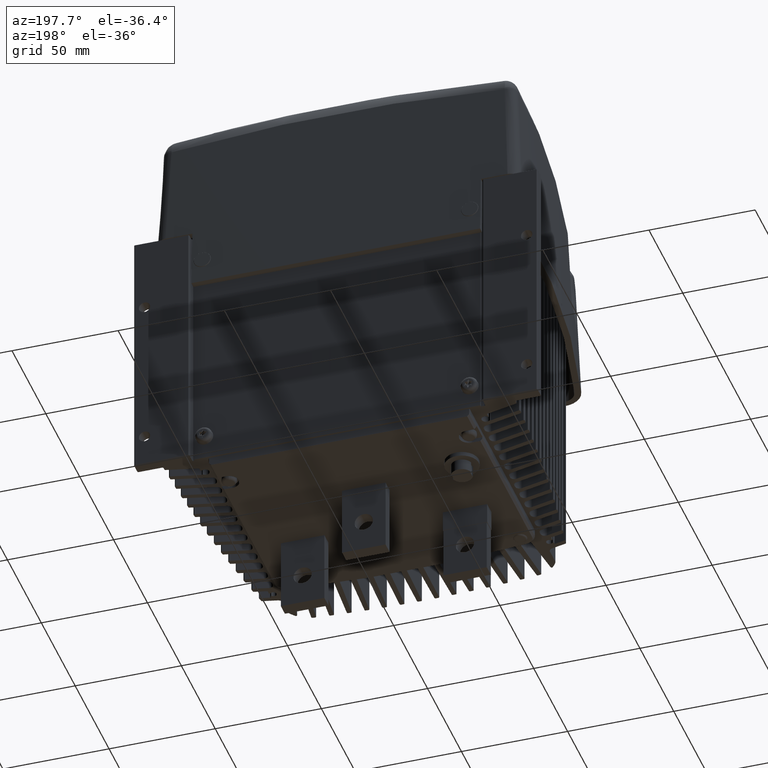
[diagram: clean part render]
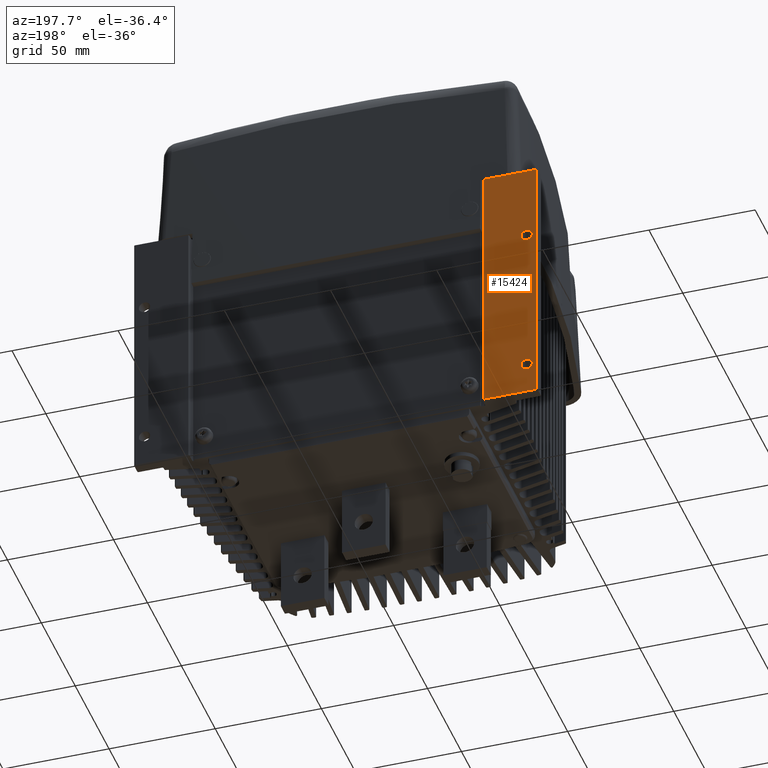
[diagram: same view with one face highlighted and labeled with its STEP entity id]
A machine part, auxiliary view. The second image highlights one B-rep face of the part: STEP entity #15424.
In plain terms, the highlighted planar face has unit normal (-0, 1, -0).
Its self-contained STEP definition (entity closure, byte-faithful):
#1458=LINE('',#23489,#2561);
#1459=LINE('',#23491,#2562);
#1460=LINE('',#23493,#2563);
#1461=LINE('',#23494,#2564);
#2561=VECTOR('',#18277,25.);
#2562=VECTOR('',#18278,122.499999999999);
#2563=VECTOR('',#18279,25.);
#2564=VECTOR('',#18280,122.499999999999);
#3619=PLANE('',#16404);
#3958=FACE_BOUND('',#4930,.T.);
#3959=FACE_BOUND('',#4931,.T.);
#4042=FACE_OUTER_BOUND('',#4929,.T.);
#4929=EDGE_LOOP('',(#10753,#10754,#10755,#10756));
#4930=EDGE_LOOP('',(#10757));
#4931=EDGE_LOOP('',(#10758));
#5796=CIRCLE('',#16247,2.65);
#5804=CIRCLE('',#16259,2.65);
#6667=VERTEX_POINT('',#22270);
#6675=VERTEX_POINT('',#22290);
#6904=VERTEX_POINT('',#23487);
#6905=VERTEX_POINT('',#23488);
#6906=VERTEX_POINT('',#23490);
#6907=VERTEX_POINT('',#23492);
#8170=EDGE_CURVE('',#6667,#6667,#5796,.T.);
#8178=EDGE_CURVE('',#6675,#6675,#5804,.T.);
#8420=EDGE_CURVE('',#6904,#6905,#1458,.T.);
#8421=EDGE_CURVE('',#6905,#6906,#1459,.T.);
#8422=EDGE_CURVE('',#6907,#6906,#1460,.T.);
#8423=EDGE_CURVE('',#6904,#6907,#1461,.T.);
#10753=ORIENTED_EDGE('',*,*,#8420,.T.);
#10754=ORIENTED_EDGE('',*,*,#8421,.T.);
#10755=ORIENTED_EDGE('',*,*,#8422,.F.);
#10756=ORIENTED_EDGE('',*,*,#8423,.F.);
#10757=ORIENTED_EDGE('',*,*,#8170,.T.);
#10758=ORIENTED_EDGE('',*,*,#8178,.T.);
#15424=ADVANCED_FACE('',(#4042,#3958,#3959),#3619,.T.);
#16247=AXIS2_PLACEMENT_3D('',#22271,#17892,#17893);
#16259=AXIS2_PLACEMENT_3D('',#22291,#17916,#17917);
#16404=AXIS2_PLACEMENT_3D('',#23486,#18275,#18276);
#17892=DIRECTION('center_axis',(3.65263375101677E-15,-1.,3.46944695195341E-18));
#17893=DIRECTION('ref_axis',(-1.,-3.65086620924473E-15,-1.25378039379602E-31));
#17916=DIRECTION('center_axis',(3.65263375101677E-15,-1.,3.46944695195341E-18));
#17917=DIRECTION('ref_axis',(-1.,-3.65086620924473E-15,-1.25378039379602E-31));
#18275=DIRECTION('center_axis',(-3.65263375101677E-15,1.,-3.46944695195341E-18));
#18276=DIRECTION('ref_axis',(-1.,0.,0.));
#18277=DIRECTION('',(-1.,-3.65263375101677E-15,4.16333634234434E-17));
#18278=DIRECTION('',(4.16333634234434E-17,3.46944695195356E-18,1.));
#18279=DIRECTION('',(-1.,-3.65263375101677E-15,4.16333634234434E-17));
#18280=DIRECTION('',(4.16333634234434E-17,3.46944695195356E-18,1.));
#22270=CARTESIAN_POINT('',(9.96611130499619,144.060220876163,126.021374530365));
#22271=CARTESIAN_POINT('Origin',(7.31611130499619,144.060220876163,126.021374530365));
#22290=CARTESIAN_POINT('',(9.96611130499619,144.060220876163,54.0213745303655));
#22291=CARTESIAN_POINT('Origin',(7.31611130499619,144.060220876163,54.0213745303655));
#23486=CARTESIAN_POINT('Origin',(27.8161113049962,144.060220876163,39.0213745303655));
#23487=CARTESIAN_POINT('',(27.8161113049962,144.060220876163,39.0213745303655));
#23488=CARTESIAN_POINT('',(2.8161113049962,144.060220876162,39.0213745303655));
#23489=CARTESIAN_POINT('',(27.8161113049962,144.060220876163,39.0213745303655));
#23490=CARTESIAN_POINT('',(2.8161113049962,144.060220876162,161.521374530365));
#23491=CARTESIAN_POINT('',(2.8161113049962,144.060220876162,39.0213745303655));
#23492=CARTESIAN_POINT('',(27.8161113049962,144.060220876163,161.521374530365));
#23493=CARTESIAN_POINT('',(27.8161113049962,144.060220876163,161.521374530365));
#23494=CARTESIAN_POINT('',(27.8161113049962,144.060220876163,39.0213745303655));